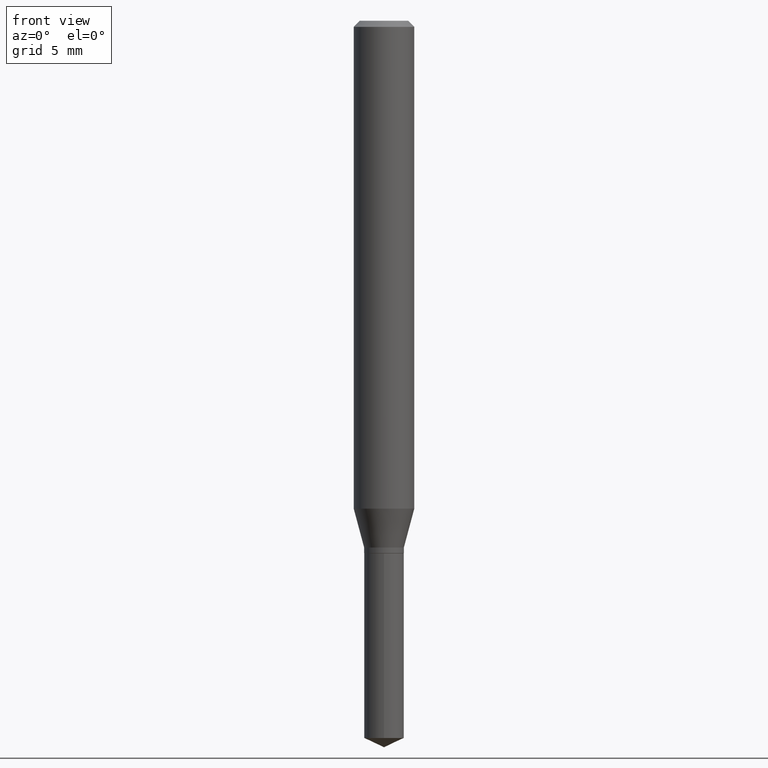
[diagram: clean part render]
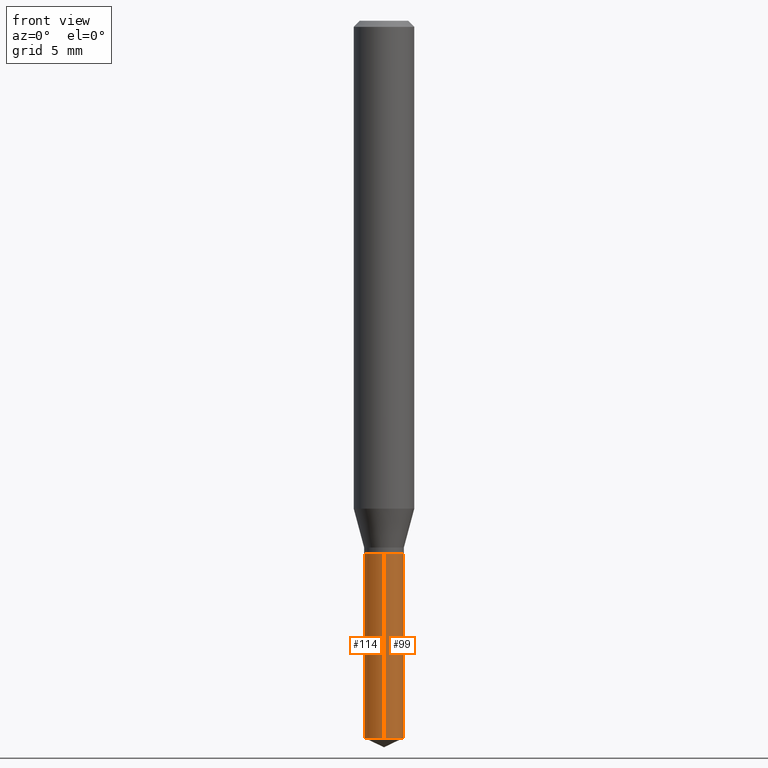
[diagram: same view with one multi-face feature highlighted, each face labeled with its STEP entity id]
A machine part, front view. The highlighted faces form ONE feature: a constant-radius fillet chain: 2 tangent blend faces with common blend radius 1.0414 mm. The faces share edges in the B-rep.
Their STEP definitions:
[1] entity #99 (Cylinder):
#3 = VECTOR ( 'NONE', #289, 39.37007874015748143 ) ;
#29 = DIRECTION ( 'NONE',  ( -2.445399690415121530E-29, 3.491580316559632610E-15, 1.000000000000000000 ) ) ;
#33 = VERTEX_POINT ( 'NONE', #100 ) ;
#45 = EDGE_CURVE ( 'NONE', #33, #442, #222, .T. ) ;
#73 = DIRECTION ( 'NONE',  ( -2.445399690415121530E-29, 3.491580316559632610E-15, 1.000000000000000000 ) ) ;
#79 = EDGE_CURVE ( 'NONE', #33, #353, #326, .T. ) ;
#83 = VERTEX_POINT ( 'NONE', #215 ) ;
#99 = ADVANCED_FACE ( 'NONE', ( #212 ), #489, .T. ) ;
#100 = CARTESIAN_POINT ( 'NONE',  ( -2.863014697851007008E-16, -0.04100000000000518507, -1.480881386015644674 ) ) ;
#101 = CARTESIAN_POINT ( 'NONE',  ( 2.913225216616679097E-16, 0.04099999999999616451, -1.100000000000000089 ) ) ;
#106 = DIRECTION ( 'NONE',  ( -6.982962677686266711E-15, -1.000000000000000000, 3.331521943493003704E-15 ) ) ;
#119 = AXIS2_PLACEMENT_3D ( 'NONE', #440, #29, #106 ) ;
#148 = CARTESIAN_POINT ( 'NONE',  ( 2.690015686803650369E-29, -3.840629472727460101E-15, -1.100000000000000089 ) ) ;
#175 = LINE ( 'NONE', #101, #3 ) ;
#193 = ORIENTED_EDGE ( 'NONE', *, *, #45, .F. ) ;
#197 = ORIENTED_EDGE ( 'NONE', *, *, #79, .T. ) ;
#212 = FACE_OUTER_BOUND ( 'NONE', #396, .T. ) ;
#215 = CARTESIAN_POINT ( 'NONE',  ( 2.913225216616773267E-16, 0.04099999999999616451, -1.100000000000000089 ) ) ;
#222 = LINE ( 'NONE', #333, #319 ) ;
#255 = DIRECTION ( 'NONE',  ( -2.445399690415121810E-29, 3.491580316559632610E-15, 1.000000000000000000 ) ) ;
#267 = CIRCLE ( 'NONE', #119, 0.04100000000000000172 ) ;
#289 = DIRECTION ( 'NONE',  ( -2.445399690415121810E-29, 3.491580316559632610E-15, 1.000000000000000000 ) ) ;
#298 = DIRECTION ( 'NONE',  ( -6.982962677686266711E-15, -1.000000000000000000, 6.663043886986007407E-15 ) ) ;
#299 = DIRECTION ( 'NONE',  ( -6.982962677686266711E-15, -1.000000000000000000, 3.331521943493003704E-15 ) ) ;
#303 = ORIENTED_EDGE ( 'NONE', *, *, #423, .F. ) ;
#319 = VECTOR ( 'NONE', #255, 39.37007874015748143 ) ;
#325 = CARTESIAN_POINT ( 'NONE',  ( 3.621422910251190172E-29, -5.170507423083637704E-15, -1.480881386015644896 ) ) ;
#326 = CIRCLE ( 'NONE', #349, 0.04100000000000000172 ) ;
#333 = CARTESIAN_POINT ( 'NONE',  ( -2.863014697851100192E-16, -0.04100000000000384587, -1.099999999999999867 ) ) ;
#349 = AXIS2_PLACEMENT_3D ( 'NONE', #325, #73, #298 ) ;
#353 = VERTEX_POINT ( 'NONE', #370 ) ;
#370 = CARTESIAN_POINT ( 'NONE',  ( 2.913225216616773267E-16, 0.04099999999999483224, -1.480881386015645118 ) ) ;
#376 = EDGE_CURVE ( 'NONE', #353, #83, #175, .T. ) ;
#396 = EDGE_LOOP ( 'NONE', ( #197, #488, #303, #193 ) ) ;
#400 = DIRECTION ( 'NONE',  ( -2.445399690415121530E-29, 3.491580316559632610E-15, 1.000000000000000000 ) ) ;
#423 = EDGE_CURVE ( 'NONE', #442, #83, #267, .T. ) ;
#440 = CARTESIAN_POINT ( 'NONE',  ( 2.690015686803650369E-29, -3.840629472727460101E-15, -1.100000000000000089 ) ) ;
#442 = VERTEX_POINT ( 'NONE', #451 ) ;
#451 = CARTESIAN_POINT ( 'NONE',  ( -2.863014697851100192E-16, -0.04100000000000384587, -1.099999999999999867 ) ) ;
#457 = AXIS2_PLACEMENT_3D ( 'NONE', #148, #400, #299 ) ;
#488 = ORIENTED_EDGE ( 'NONE', *, *, #376, .T. ) ;
#489 = CYLINDRICAL_SURFACE ( 'NONE', #457, 0.04100000000000000172 ) ;
[2] entity #114 (Cylinder):
#3 = VECTOR ( 'NONE', #289, 39.37007874015748143 ) ;
#6 = EDGE_CURVE ( 'NONE', #83, #442, #345, .T. ) ;
#26 = CYLINDRICAL_SURFACE ( 'NONE', #464, 0.04100000000000000172 ) ;
#33 = VERTEX_POINT ( 'NONE', #100 ) ;
#45 = EDGE_CURVE ( 'NONE', #33, #442, #222, .T. ) ;
#46 = CIRCLE ( 'NONE', #239, 0.04100000000000000172 ) ;
#61 = CARTESIAN_POINT ( 'NONE',  ( 3.621422910251190172E-29, -5.170507423083637704E-15, -1.480881386015644896 ) ) ;
#68 = DIRECTION ( 'NONE',  ( -6.982962677686266711E-15, -1.000000000000000000, 6.663043886986007407E-15 ) ) ;
#83 = VERTEX_POINT ( 'NONE', #215 ) ;
#93 = DIRECTION ( 'NONE',  ( -2.445399690415121530E-29, 3.491580316559632610E-15, 1.000000000000000000 ) ) ;
#100 = CARTESIAN_POINT ( 'NONE',  ( -2.863014697851007008E-16, -0.04100000000000518507, -1.480881386015644674 ) ) ;
#101 = CARTESIAN_POINT ( 'NONE',  ( 2.913225216616679097E-16, 0.04099999999999616451, -1.100000000000000089 ) ) ;
#114 = ADVANCED_FACE ( 'NONE', ( #362 ), #26, .T. ) ;
#141 = DIRECTION ( 'NONE',  ( -6.982962677686266711E-15, -1.000000000000000000, 3.331521943493003704E-15 ) ) ;
#173 = CARTESIAN_POINT ( 'NONE',  ( 2.690015686803650369E-29, -3.840629472727460101E-15, -1.100000000000000089 ) ) ;
#175 = LINE ( 'NONE', #101, #3 ) ;
#177 = CARTESIAN_POINT ( 'NONE',  ( 2.690015686803650369E-29, -3.840629472727460101E-15, -1.100000000000000089 ) ) ;
#190 = ORIENTED_EDGE ( 'NONE', *, *, #481, .T. ) ;
#215 = CARTESIAN_POINT ( 'NONE',  ( 2.913225216616773267E-16, 0.04099999999999616451, -1.100000000000000089 ) ) ;
#222 = LINE ( 'NONE', #333, #319 ) ;
#239 = AXIS2_PLACEMENT_3D ( 'NONE', #61, #253, #68 ) ;
#253 = DIRECTION ( 'NONE',  ( -2.445399690415121530E-29, 3.491580316559632610E-15, 1.000000000000000000 ) ) ;
#255 = DIRECTION ( 'NONE',  ( -2.445399690415121810E-29, 3.491580316559632610E-15, 1.000000000000000000 ) ) ;
#289 = DIRECTION ( 'NONE',  ( -2.445399690415121810E-29, 3.491580316559632610E-15, 1.000000000000000000 ) ) ;
#317 = DIRECTION ( 'NONE',  ( -6.982962677686266711E-15, -1.000000000000000000, 3.331521943493003704E-15 ) ) ;
#319 = VECTOR ( 'NONE', #255, 39.37007874015748143 ) ;
#333 = CARTESIAN_POINT ( 'NONE',  ( -2.863014697851100192E-16, -0.04100000000000384587, -1.099999999999999867 ) ) ;
#345 = CIRCLE ( 'NONE', #429, 0.04100000000000000172 ) ;
#348 = ORIENTED_EDGE ( 'NONE', *, *, #45, .T. ) ;
#353 = VERTEX_POINT ( 'NONE', #370 ) ;
#362 = FACE_OUTER_BOUND ( 'NONE', #410, .T. ) ;
#370 = CARTESIAN_POINT ( 'NONE',  ( 2.913225216616773267E-16, 0.04099999999999483224, -1.480881386015645118 ) ) ;
#376 = EDGE_CURVE ( 'NONE', #353, #83, #175, .T. ) ;
#410 = EDGE_LOOP ( 'NONE', ( #424, #190, #348, #453 ) ) ;
#424 = ORIENTED_EDGE ( 'NONE', *, *, #376, .F. ) ;
#429 = AXIS2_PLACEMENT_3D ( 'NONE', #173, #93, #317 ) ;
#442 = VERTEX_POINT ( 'NONE', #451 ) ;
#451 = CARTESIAN_POINT ( 'NONE',  ( -2.863014697851100192E-16, -0.04100000000000384587, -1.099999999999999867 ) ) ;
#453 = ORIENTED_EDGE ( 'NONE', *, *, #6, .F. ) ;
#464 = AXIS2_PLACEMENT_3D ( 'NONE', #177, #479, #141 ) ;
#479 = DIRECTION ( 'NONE',  ( -2.445399690415121530E-29, 3.491580316559632610E-15, 1.000000000000000000 ) ) ;
#481 = EDGE_CURVE ( 'NONE', #353, #33, #46, .T. ) ;